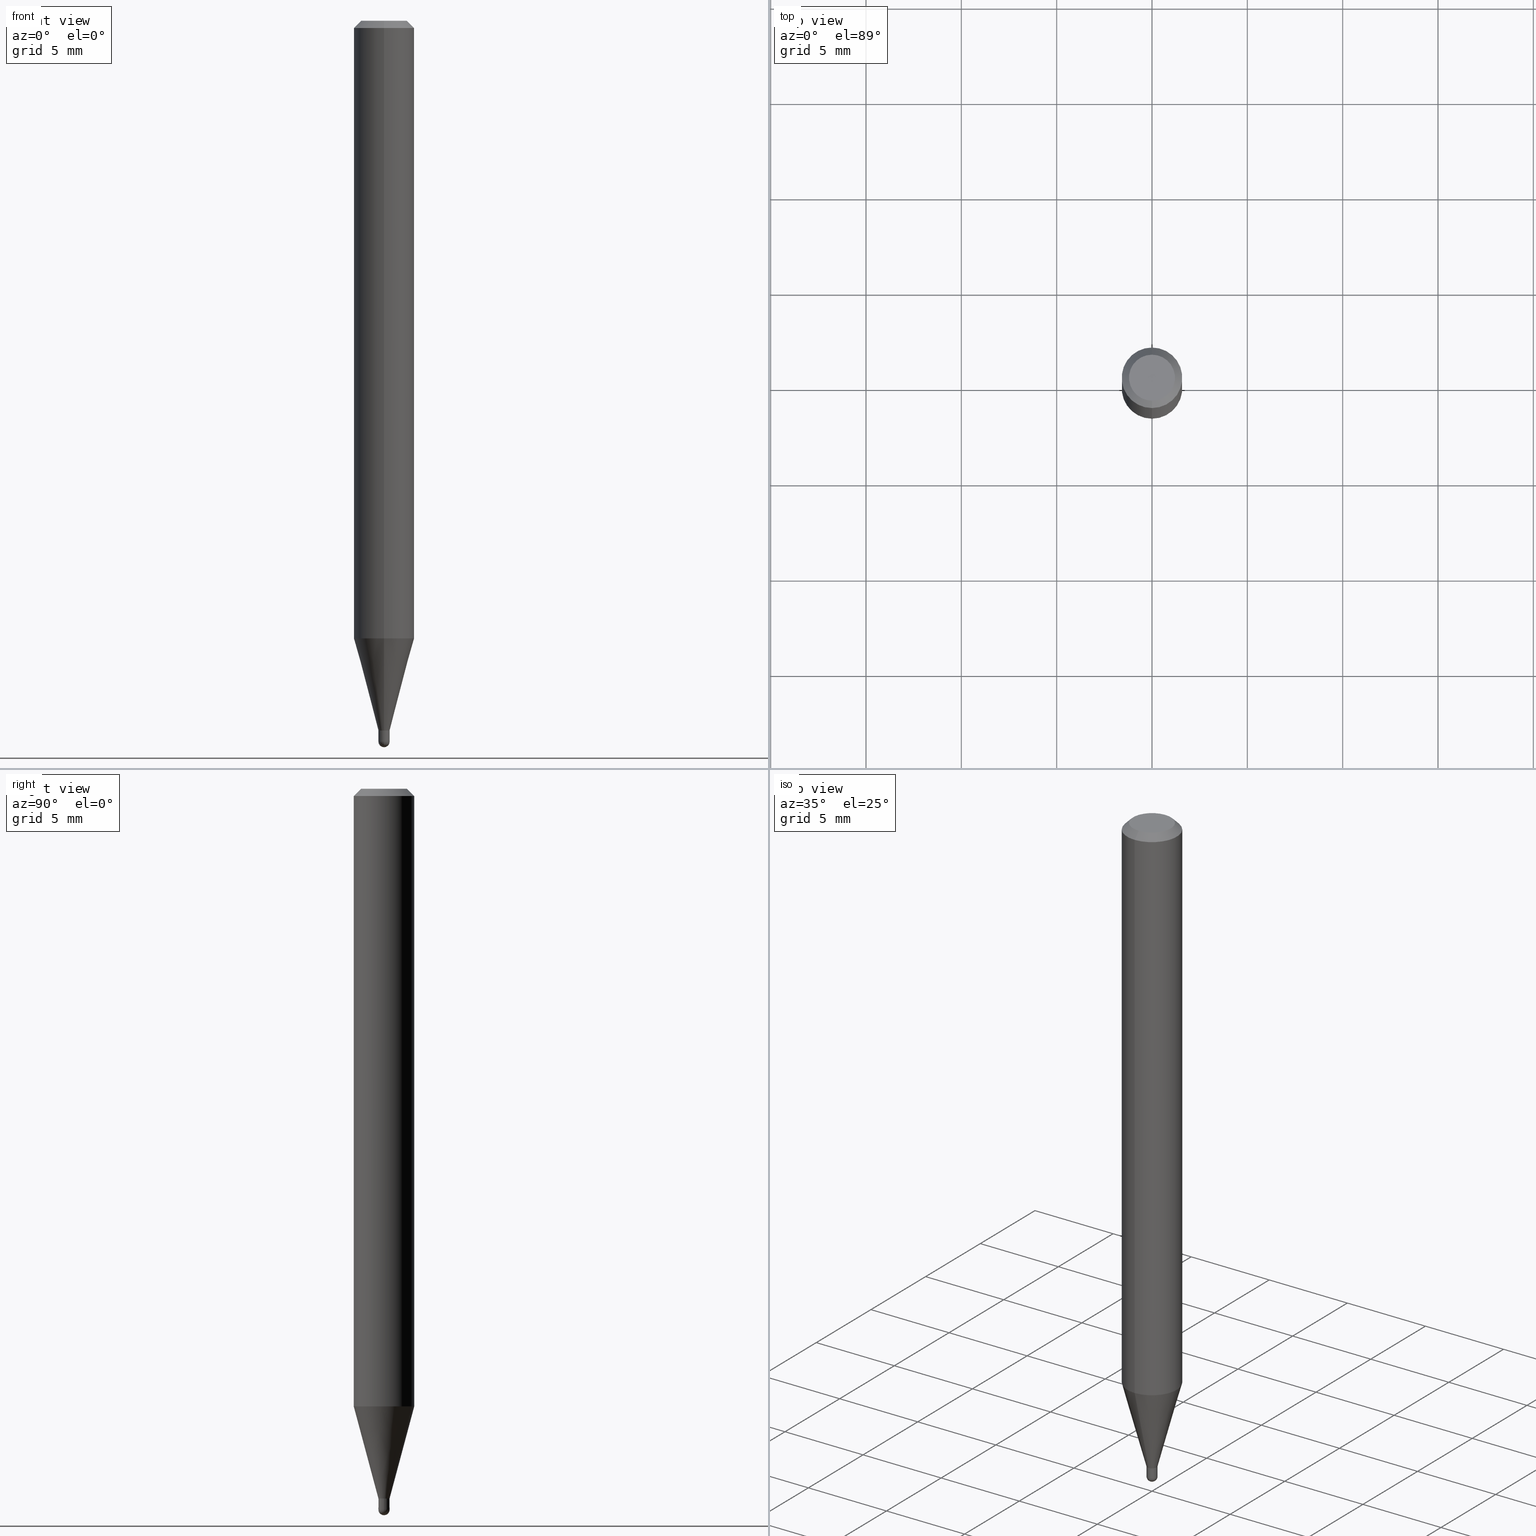
[diagram: canonical four-view strip — front | top / right | iso, engineering-drawing reading convention]
A machine part, canonical four-view strip (front | top / right | iso — engineering-drawing reading convention). The complete STEP part file that produces these views, byte-faithful:
ISO-10303-21;
HEADER;
FILE_DESCRIPTION (( 'STEP AP203' ),
    '1' );
FILE_NAME ('04335.STEP',
    '2024-03-08T18:42:00',
    ( '' ),
    ( '' ),
    'SwSTEP 2.0',
    'SolidWorks 2023',
    '' );
FILE_SCHEMA (( 'CONFIG_CONTROL_DESIGN' ));
ENDSEC;

DATA;
#1 = AXIS2_PLACEMENT_3D ( 'NONE', #470, #182, #310 ) ;
#2 = EDGE_CURVE ( 'NONE', #123, #12, #137, .T. ) ;
#3 = CARTESIAN_POINT ( 'NONE',  ( 3.639096876774019405E-29, -5.198478316687040897E-15, -1.488499999999999934 ) ) ;
#4 = APPROVAL_PERSON_ORGANIZATION ( #27, #221, #142 ) ;
#5 = VERTEX_POINT ( 'NONE', #140 ) ;
#6 = APPROVAL ( #149, 'UNSPECIFIED' ) ;
#7 = FACE_OUTER_BOUND ( 'NONE', #132, .T. ) ;
#8 = ORIENTED_EDGE ( 'NONE', *, *, #428, .F. ) ;
#9 = DIRECTION ( 'NONE',  ( -2.445458199686811068E-29, 3.491496527952432111E-15, 1.000000000000000000 ) ) ;
#10 = ORIENTED_EDGE ( 'NONE', *, *, #298, .T. ) ;
#11 = CARTESIAN_POINT ( 'NONE',  ( 3.583818991641022861E-29, -5.116788161714290594E-15, -1.465500000000000469 ) ) ;
#12 = VERTEX_POINT ( 'NONE', #461 ) ;
#13 = EDGE_CURVE ( 'NONE', #455, #268, #111, .T. ) ;
#14 = DIRECTION ( 'NONE',  ( -2.445468806185136597E-29, 3.491481338843145583E-15, 1.000000000000000000 ) ) ;
#15 = ORIENTED_EDGE ( 'NONE', *, *, #2, .T. ) ;
#16 = CARTESIAN_POINT ( 'NONE',  ( 7.993605777304780207E-17, 0.01099999999999488540, -1.465500000000000469 ) ) ;
#17 = ORIENTED_EDGE ( 'NONE', *, *, #478, .F. ) ;
#18 = DIRECTION ( 'NONE',  ( 6.982962677686265922E-15, 1.000000000000000000, -3.483106191921935554E-15 ) ) ;
#19 = CARTESIAN_POINT ( 'NONE',  ( 0.01149999999999999981, -8.030407079339207309E-17, 5.607603292165326057E-31 ) ) ;
#20 = CARTESIAN_POINT ( 'NONE',  ( 3.640080318006575506E-29, -5.197069972868022017E-15, -1.488499999999999934 ) ) ;
#21 = DESIGN_CONTEXT ( 'detailed design', #181, 'design' ) ;
#22 = CARTESIAN_POINT ( 'NONE',  ( 0.000000000000000000, 0.000000000000000000, 0.000000000000000000 ) ) ;
#23 = CARTESIAN_POINT ( 'NONE',  ( 4.440892098500625669E-16, 0.06250000000000000000, -2.182185329970270069E-16 ) ) ;
#24 = ORIENTED_EDGE ( 'NONE', *, *, #371, .T. ) ;
#25 = CARTESIAN_POINT ( 'NONE',  ( 3.583818991641022861E-29, -5.116788161714290594E-15, -1.465500000000000469 ) ) ;
#26 = EDGE_CURVE ( 'NONE', #5, #265, #224, .T. ) ;
#27 = PERSON_AND_ORGANIZATION ( #254, #176 ) ;
#28 = VECTOR ( 'NONE', #364, 39.37007874015748854 ) ;
#29 = CC_DESIGN_SECURITY_CLASSIFICATION ( #219, ( #238 ) ) ;
#30 = CARTESIAN_POINT ( 'NONE',  ( 3.666728047428870464E-29, -5.239334523993247680E-15, -1.500000000000000222 ) ) ;
#31 = APPROVAL_ROLE ( '' ) ;
#32 = FACE_OUTER_BOUND ( 'NONE', #206, .T. ) ;
#33 = ADVANCED_FACE ( 'NONE', ( #218 ), #387, .T. ) ;
#34 = DIRECTION ( 'NONE',  ( -6.982962677686265922E-15, -1.000000000000000000, 3.491496527952432111E-15 ) ) ;
#35 = VECTOR ( 'NONE', #511, 39.37007874015748143 ) ;
#36 = PERSON_AND_ORGANIZATION ( #254, #176 ) ;
#37 = CIRCLE ( 'NONE', #133, 0.01150000000000019930 ) ;
#38 = DIRECTION ( 'NONE',  ( 1.000000000000000000, -6.982962677686267499E-15, 4.876176775795935793E-29 ) ) ;
#39 = CARTESIAN_POINT ( 'NONE',  ( 3.583818991641022861E-29, -5.116788161714290594E-15, -1.465500000000000469 ) ) ;
#40 = ADVANCED_FACE ( 'NONE', ( #360 ), #67, .F. ) ;
#41 = LINE ( 'NONE', #127, #28 ) ;
#42 = ORIENTED_EDGE ( 'NONE', *, *, #285, .F. ) ;
#43 = CC_DESIGN_PERSON_AND_ORGANIZATION_ASSIGNMENT ( #317, #397, ( #194 ) ) ;
#44 = CARTESIAN_POINT ( 'NONE',  ( 8.171241461244846087E-17, 0.01149999999999504717, -1.465000000000000302 ) ) ;
#45 = EDGE_LOOP ( 'NONE', ( #200, #116 ) ) ;
#46 = DIRECTION ( 'NONE',  ( 2.438088387897960049E-29, -3.491481338843145188E-15, -1.000000000000000000 ) ) ;
#47 = ORIENTED_EDGE ( 'NONE', *, *, #316, .T. ) ;
#48 = CARTESIAN_POINT ( 'NONE',  ( -4.364351673553606080E-16, -0.06250000000000446865, -1.275165408813993873 ) ) ;
#49 = EDGE_CURVE ( 'NONE', #268, #455, #225, .T. ) ;
#50 = ORIENTED_EDGE ( 'NONE', *, *, #49, .T. ) ;
#51 = LENGTH_MEASURE_WITH_UNIT ( LENGTH_MEASURE( 0.02539999999999999897 ), #139 );
#52 = EDGE_LOOP ( 'NONE', ( #42, #24, #458, #166 ) ) ;
#53 = CIRCLE ( 'NONE', #502, 0.06250000000000000000 ) ;
#54 = CARTESIAN_POINT ( 'NONE',  ( 3.316907271900976096E-16, 0.04749999999999999362, -1.985958413625930540E-16 ) ) ;
#55 = ORIENTED_EDGE ( 'NONE', *, *, #329, .F. ) ;
#56 = DIRECTION ( 'NONE',  ( 5.024295867788190974E-15, 0.7071067811865681119, 0.7071067811865270336 ) ) ;
#57 = DIRECTION ( 'NONE',  ( -2.445468806185136877E-29, 3.491481338843145188E-15, 1.000000000000000000 ) ) ;
#58 = DIRECTION ( 'NONE',  ( -2.445458199686811068E-29, 3.491496527952432111E-15, 1.000000000000000000 ) ) ;
#59 = DIRECTION ( 'NONE',  ( -2.445468806185136877E-29, 3.491481338843145188E-15, 1.000000000000000000 ) ) ;
#60 = AXIS2_PLACEMENT_3D ( 'NONE', #154, #46, #246 ) ;
#61 = DIRECTION ( 'NONE',  ( -2.445458199686811068E-29, 3.491496527952432111E-15, 1.000000000000000000 ) ) ;
#62 = ORIENTED_EDGE ( 'NONE', *, *, #185, .T. ) ;
#63 = DATE_AND_TIME ( #429, #339 ) ;
#64 = EDGE_LOOP ( 'NONE', ( #488, #389, #369, #372 ) ) ;
#65 = ADVANCED_FACE ( 'NONE', ( #32 ), #347, .T. ) ;
#66 = CARTESIAN_POINT ( 'NONE',  ( 0.000000000000000000, 0.000000000000000000, 0.000000000000000000 ) ) ;
#67 = PLANE ( 'NONE',  #363 ) ;
#68 = CONICAL_SURFACE ( 'NONE', #122, 0.01100000000000000110, 0.7853981633974739252 ) ;
#69 = AXIS2_PLACEMENT_3D ( 'NONE', #76, #78, #480 ) ;
#70 = DIRECTION ( 'NONE',  ( -4.937700262164674260E-15, -0.7071067811865632269, 0.7071067811865319186 ) ) ;
#71 = ADVANCED_FACE ( 'NONE', ( #230 ), #189, .T. ) ;
#72 = CYLINDRICAL_SURFACE ( 'NONE', #119, 0.01150000000000019930 ) ;
#73 = DIRECTION ( 'NONE',  ( -6.982962677686265922E-15, -1.000000000000000000, 3.491496527952432111E-15 ) ) ;
#74 = LINE ( 'NONE', #396, #183 ) ;
#75 = LINE ( 'NONE', #326, #367 ) ;
#76 = CARTESIAN_POINT ( 'NONE',  ( 3.582596262541178850E-29, -5.115042413450313463E-15, -1.465000000000000302 ) ) ;
#77 = VERTEX_POINT ( 'NONE', #503 ) ;
#78 = DIRECTION ( 'NONE',  ( -2.445458199686811068E-29, 3.491496527952432111E-15, 1.000000000000000000 ) ) ;
#79 = VECTOR ( 'NONE', #167, 39.37007874015748143 ) ;
#80 = ORIENTED_EDGE ( 'NONE', *, *, #489, .F. ) ;
#81 = ADVANCED_FACE ( 'NONE', ( #436 ), #506, .T. ) ;
#82 = DIRECTION ( 'NONE',  ( -6.982962677686265922E-15, -1.000000000000000000, 0.000000000000000000 ) ) ;
#83 = VERTEX_POINT ( 'NONE', #30 ) ;
#84 = CIRCLE ( 'NONE', #162, 0.01149999999999999981 ) ;
#85 = DIRECTION ( 'NONE',  ( 1.000000000000000000, -6.982962677686291165E-15, 0.000000000000000000 ) ) ;
#86 = ORIENTED_EDGE ( 'NONE', *, *, #421, .T. ) ;
#87 = DIRECTION ( 'NONE',  ( 1.000000000000000000, -6.982962677686291165E-15, 0.000000000000000000 ) ) ;
#88 = EDGE_LOOP ( 'NONE', ( #481, #365, #485, #159 ) ) ;
#89 = EDGE_CURVE ( 'NONE', #135, #500, #465, .T. ) ;
#90 = AXIS2_PLACEMENT_3D ( 'NONE', #287, #484, #165 ) ;
#91 = CARTESIAN_POINT ( 'NONE',  ( 3.583818991641021740E-29, -5.116788161714288228E-15, -1.465500000000000025 ) ) ;
#92 = ORIENTED_EDGE ( 'NONE', *, *, #482, .T. ) ;
#93 = PRODUCT_RELATED_PRODUCT_CATEGORY ( 'detail', '', ( #194 ) ) ;
#94 = CARTESIAN_POINT ( 'NONE',  ( -3.773273898774340269E-16, -0.04749999999999999362, 1.003465725080354180E-16 ) ) ;
#95 = ORIENTED_EDGE ( 'NONE', *, *, #49, .F. ) ;
#96 = DIRECTION ( 'NONE',  ( 1.000000000000000000, -6.982962677686267499E-15, 4.876176775795935793E-29 ) ) ;
#97 = ORIENTED_EDGE ( 'NONE', *, *, #147, .F. ) ;
#98 = CIRCLE ( 'NONE', #445, 0.01149999999999999981 ) ;
#99 = EDGE_CURVE ( 'NONE', #83, #77, #241, .T. ) ;
#100 = ORIENTED_EDGE ( 'NONE', *, *, #349, .T. ) ;
#101 = DIRECTION ( 'NONE',  ( 1.000000000000000000, 0.000000000000000000, 0.000000000000000000 ) ) ;
#102 = DIRECTION ( 'NONE',  ( -6.982962677686265922E-15, -1.000000000000000000, 0.000000000000000000 ) ) ;
#103 = SECURITY_CLASSIFICATION_LEVEL ( 'unclassified' ) ;
#104 = CARTESIAN_POINT ( 'NONE',  ( -8.030407079339345359E-17, -0.01150000000000019930, 4.015221007145366431E-17 ) ) ;
#105 = AXIS2_PLACEMENT_3D ( 'NONE', #330, #447, #304 ) ;
#106 = CALENDAR_DATE ( 2024, 8, 3 ) ;
#107 = DIRECTION ( 'NONE',  ( -2.445458199686811068E-29, 3.491496527952432111E-15, 1.000000000000000000 ) ) ;
#108 = COORDINATED_UNIVERSAL_TIME_OFFSET ( 5, 0, .BEHIND. ) ;
#109 = CARTESIAN_POINT ( 'NONE',  ( -0.01149999999999999981, -5.075205522858914658E-15, -1.488499999999999934 ) ) ;
#110 = DIRECTION ( 'NONE',  ( -6.982962677686265922E-15, -1.000000000000000000, 0.000000000000000000 ) ) ;
#111 = CIRCLE ( 'NONE', #145, 0.06250000000000000000 ) ;
#112 = CIRCLE ( 'NONE', #266, 0.01150000000000019930 ) ;
#113 = EDGE_CURVE ( 'NONE', #77, #5, #442, .T. ) ;
#114 = CARTESIAN_POINT ( 'NONE',  ( 3.668187299530233313E-31, -5.237244791928671192E-17, -0.01500000000000006710 ) ) ;
#115 = CYLINDRICAL_SURFACE ( 'NONE', #90, 0.01150000000000019930 ) ;
#116 = ORIENTED_EDGE ( 'NONE', *, *, #285, .T. ) ;
#117 = FACE_OUTER_BOUND ( 'NONE', #410, .T. ) ;
#118 = VERTEX_POINT ( 'NONE', #472 ) ;
#119 = AXIS2_PLACEMENT_3D ( 'NONE', #143, #312, #34 ) ;
#120 = ADVANCED_FACE ( 'NONE', ( #433 ), #191, .T. ) ;
#121 = DIRECTION ( 'NONE',  ( -2.445458199686811068E-29, 3.491496527952432111E-15, 1.000000000000000000 ) ) ;
#122 = AXIS2_PLACEMENT_3D ( 'NONE', #39, #9, #296 ) ;
#123 = VERTEX_POINT ( 'NONE', #109 ) ;
#124 = LOCAL_TIME ( 13, 42, 0.000000000000000000, #223 ) ;
#125 = DIMENSIONAL_EXPONENTS ( 1.000000000000000000, 0.000000000000000000, 0.000000000000000000, 0.000000000000000000, 0.000000000000000000, 0.000000000000000000, 0.000000000000000000 ) ;
#126 = APPLICATION_CONTEXT ( 'configuration controlled 3d designs of mechanical parts and assemblies' ) ;
#127 = CARTESIAN_POINT ( 'NONE',  ( 8.171241461244875669E-17, 0.01149999999999508360, -1.465500000000000025 ) ) ;
#128 = EDGE_LOOP ( 'NONE', ( #204, #342, #262, #406 ) ) ;
#129 = DIRECTION ( 'NONE',  ( 6.982962677686265922E-15, 1.000000000000000000, -3.491496527952432506E-15 ) ) ;
#130 = ORIENTED_EDGE ( 'NONE', *, *, #13, .F. ) ;
#131 = ADVANCED_FACE ( 'NONE', ( #464 ), #72, .F. ) ;
#132 = EDGE_LOOP ( 'NONE', ( #259, #10, #178, #180 ) ) ;
#133 = AXIS2_PLACEMENT_3D ( 'NONE', #91, #61, #217 ) ;
#134 = DIRECTION ( 'NONE',  ( -2.445468806185136597E-29, 3.491481338843145583E-15, 1.000000000000000000 ) ) ;
#135 = VERTEX_POINT ( 'NONE', #278 ) ;
#136 = DIRECTION ( 'NONE',  ( -6.982962677686265922E-15, -1.000000000000000000, 0.000000000000000000 ) ) ;
#137 = LINE ( 'NONE', #222, #345 ) ;
#138 = EDGE_CURVE ( 'NONE', #413, #409, #233, .T. ) ;
#139 =( LENGTH_UNIT ( ) NAMED_UNIT ( * ) SI_UNIT ( $, .METRE. ) );
#140 = CARTESIAN_POINT ( 'NONE',  ( 0.01149999999999999981, -5.237222008264718177E-15, -1.488499999999999934 ) ) ;
#141 = CONICAL_SURFACE ( 'NONE', #315, 0.06250000000000000000, 0.7853981633974483900 ) ;
#142 = APPROVAL_ROLE ( '' ) ;
#143 = CARTESIAN_POINT ( 'NONE',  ( 0.000000000000000000, 0.000000000000000000, 0.000000000000000000 ) ) ;
#144 =( NAMED_UNIT ( * ) SI_UNIT ( $, .STERADIAN. ) SOLID_ANGLE_UNIT ( ) );
#145 = AXIS2_PLACEMENT_3D ( 'NONE', #418, #425, #215 ) ;
#146 = CARTESIAN_POINT ( 'NONE',  ( 0.000000000000000000, 0.000000000000000000, 0.000000000000000000 ) ) ;
#147 = EDGE_CURVE ( 'NONE', #331, #450, #383, .T. ) ;
#148 = CIRCLE ( 'NONE', #273, 0.01149999999999999981 ) ;
#149 = APPROVAL_STATUS ( 'not_yet_approved' ) ;
#150 = DIRECTION ( 'NONE',  ( 1.000000000000000000, -6.982962677686265922E-15, 4.883557194083112901E-29 ) ) ;
#151 = APPROVAL_ROLE ( '' ) ;
#152 = CARTESIAN_POINT ( 'NONE',  ( 1.601763200890746916E-45, -2.286913207197020571E-31, -6.549951256970509890E-17 ) ) ;
#153 = EDGE_CURVE ( 'NONE', #413, #268, #281, .T. ) ;
#154 = CARTESIAN_POINT ( 'NONE',  ( 8.030407079342789230E-17, 0.01149999999999488411, -1.465500000000000247 ) ) ;
#155 = CC_DESIGN_DATE_AND_TIME_ASSIGNMENT ( #507, #226, ( #263 ) ) ;
#156 = CIRCLE ( 'NONE', #420, 0.01150000000000019930 ) ;
#157 = CONICAL_SURFACE ( 'NONE', #105, 0.06250000000000000000, 0.7853981633974483900 ) ;
#158 = DIRECTION ( 'NONE',  ( 1.000000000000000000, -7.105427357601001070E-15, 4.926315508542082329E-29 ) ) ;
#159 = ORIENTED_EDGE ( 'NONE', *, *, #138, .F. ) ;
#160 = DIRECTION ( 'NONE',  ( -6.982962677686265922E-15, -1.000000000000000000, 3.491496527952432111E-15 ) ) ;
#161 = ORIENTED_EDGE ( 'NONE', *, *, #2, .F. ) ;
#162 = AXIS2_PLACEMENT_3D ( 'NONE', #203, #368, #240 ) ;
#163 = CARTESIAN_POINT ( 'NONE',  ( 3.840629472727447874E-16, 0.04749999999999999362, -2.313455976474456035E-16 ) ) ;
#164 = ORIENTED_EDGE ( 'NONE', *, *, #482, .F. ) ;
#165 = DIRECTION ( 'NONE',  ( -6.982962677686265922E-15, -1.000000000000000000, 3.491496527952432111E-15 ) ) ;
#166 = ORIENTED_EDGE ( 'NONE', *, *, #202, .F. ) ;
#167 = DIRECTION ( 'NONE',  ( -2.445458199686811349E-29, 3.491496527952432506E-15, 1.000000000000000000 ) ) ;
#168 = ORIENTED_EDGE ( 'NONE', *, *, #496, .F. ) ;
#169 = CIRCLE ( 'NONE', #69, 0.01150000000000019930 ) ;
#170 = EDGE_CURVE ( 'NONE', #135, #409, #74, .T. ) ;
#171 = LINE ( 'NONE', #23, #451 ) ;
#172 = ORIENTED_EDGE ( 'NONE', *, *, #252, .T. ) ;
#173 = AXIS2_PLACEMENT_3D ( 'NONE', #392, #270, #102 ) ;
#174 = DIRECTION ( 'NONE',  ( -2.445468806185136597E-29, 3.491481338843145583E-15, 1.000000000000000000 ) ) ;
#175 = ORIENTED_EDGE ( 'NONE', *, *, #153, .T. ) ;
#176 = ORGANIZATION ( 'UNSPECIFIED', 'UNSPECIFIED', '' ) ;
#177 = DIRECTION ( 'NONE',  ( -4.851104656540964275E-15, -0.7071067811865500152, -0.7071067811865450192 ) ) ;
#178 = ORIENTED_EDGE ( 'NONE', *, *, #170, .T. ) ;
#179 = AXIS2_PLACEMENT_3D ( 'NONE', #11, #242, #487 ) ;
#180 = ORIENTED_EDGE ( 'NONE', *, *, #380, .F. ) ;
#181 = APPLICATION_CONTEXT ( 'configuration controlled 3d designs of mechanical parts and assemblies' ) ;
#182 = DIRECTION ( 'NONE',  ( -2.445458199686811068E-29, 3.491496527952432111E-15, 1.000000000000000000 ) ) ;
#183 = VECTOR ( 'NONE', #70, 39.37007874015748143 ) ;
#184 = AXIS2_PLACEMENT_3D ( 'NONE', #454, #174, #96 ) ;
#185 = EDGE_CURVE ( 'NONE', #265, #12, #283, .T. ) ;
#186 = MECHANICAL_CONTEXT ( 'NONE', #126, 'mechanical' ) ;
#187 = DIRECTION ( 'NONE',  ( -1.000000000000000000, 6.982962677686265922E-15, -4.883557194083112340E-29 ) ) ;
#188 = CC_DESIGN_PERSON_AND_ORGANIZATION_ASSIGNMENT ( #391, #352, ( #238 ) ) ;
#189 = SPHERICAL_SURFACE ( 'NONE', #173, 0.01150000000000006919 ) ;
#190 = COORDINATED_UNIVERSAL_TIME_OFFSET ( 5, 0, .BEHIND. ) ;
#191 = CONICAL_SURFACE ( 'NONE', #483, 0.01150000000000019930, 0.2617993877991576235 ) ;
#192 = DIRECTION ( 'NONE',  ( -2.445468806185136597E-29, 3.491481338843145583E-15, 1.000000000000000000 ) ) ;
#193 = AXIS2_PLACEMENT_3D ( 'NONE', #114, #199, #284 ) ;
#194 = PRODUCT ( '04335', '04335', '', ( #186 ) ) ;
#195 = APPLICATION_PROTOCOL_DEFINITION ( 'international standard', 'config_control_design', 1994, #126 ) ;
#196 = CARTESIAN_POINT ( 'NONE',  ( 3.639096876774019405E-29, -5.198478316687040897E-15, -1.488499999999999934 ) ) ;
#197 = CARTESIAN_POINT ( 'NONE',  ( 3.583818991641021740E-29, -5.116788161714288228E-15, -1.465500000000000025 ) ) ;
#198 = CC_DESIGN_DATE_AND_TIME_ASSIGNMENT ( #346, #459, ( #219 ) ) ;
#199 = DIRECTION ( 'NONE',  ( -2.445458199686811068E-29, 3.491496527952432111E-15, 1.000000000000000000 ) ) ;
#200 = ORIENTED_EDGE ( 'NONE', *, *, #147, .T. ) ;
#201 = CIRCLE ( 'NONE', #193, 0.06250000000000000000 ) ;
#202 = EDGE_CURVE ( 'NONE', #331, #118, #75, .T. ) ;
#203 = CARTESIAN_POINT ( 'NONE',  ( 3.640080318006575506E-29, -5.197069972868022017E-15, -1.488499999999999934 ) ) ;
#204 = ORIENTED_EDGE ( 'NONE', *, *, #89, .T. ) ;
#205 = CARTESIAN_POINT ( 'NONE',  ( -4.364351673553912750E-16, -0.06250000000000005551, -0.01499999999999984852 ) ) ;
#206 = EDGE_LOOP ( 'NONE', ( #50, #247, #17, #80 ) ) ;
#207 = CARTESIAN_POINT ( 'NONE',  ( 3.583818991641021740E-29, -5.116788161714288228E-15, -1.465500000000000025 ) ) ;
#208 = VERTEX_POINT ( 'NONE', #44 ) ;
#209 =( CONVERSION_BASED_UNIT ( 'INCH', #51 ) LENGTH_UNIT ( ) NAMED_UNIT ( #125 ) );
#210 = LOCAL_TIME ( 13, 42, 0.000000000000000000, #350 ) ;
#211 = ADVANCED_FACE ( 'NONE', ( #370 ), #319, .T. ) ;
#212 = DIRECTION ( 'NONE',  ( -2.445458199686811068E-29, 3.491496527952432111E-15, 1.000000000000000000 ) ) ;
#213 = ORIENTED_EDGE ( 'NONE', *, *, #371, .F. ) ;
#214 = FACE_OUTER_BOUND ( 'NONE', #401, .T. ) ;
#215 = DIRECTION ( 'NONE',  ( -6.982962677686265922E-15, -1.000000000000000000, 4.370956789862821150E-15 ) ) ;
#216 = AXIS2_PLACEMENT_3D ( 'NONE', #146, #107, #73 ) ;
#217 = DIRECTION ( 'NONE',  ( -6.982962677686265922E-15, -1.000000000000000000, 0.000000000000000000 ) ) ;
#218 = FACE_OUTER_BOUND ( 'NONE', #382, .T. ) ;
#219 = SECURITY_CLASSIFICATION ( '', '', #103 ) ;
#220 = LINE ( 'NONE', #306, #79 ) ;
#221 = APPROVAL ( #432, 'UNSPECIFIED' ) ;
#222 = CARTESIAN_POINT ( 'NONE',  ( -0.01149999999999999981, 8.171241461241151999E-17, -5.656775353793142476E-31 ) ) ;
#223 = COORDINATED_UNIVERSAL_TIME_OFFSET ( 5, 0, .BEHIND. ) ;
#224 = LINE ( 'NONE', #19, #448 ) ;
#225 = CIRCLE ( 'NONE', #1, 0.06250000000000000000 ) ;
#226 = DATE_TIME_ROLE ( 'creation_date' ) ;
#227 = DIRECTION ( 'NONE',  ( -6.982962677686265922E-15, -1.000000000000000000, 3.491496527952432506E-15 ) ) ;
#228 = LOCAL_TIME ( 13, 42, 0.000000000000000000, #190 ) ;
#229 = CC_DESIGN_APPROVAL ( #221, ( #219 ) ) ;
#230 = FACE_OUTER_BOUND ( 'NONE', #444, .T. ) ;
#231 = AXIS2_PLACEMENT_3D ( 'NONE', #197, #512, #321 ) ;
#232 = APPROVAL_DATE_TIME ( #311, #221 ) ;
#233 = LINE ( 'NONE', #104, #35 ) ;
#234 = MANIFOLD_SOLID_BREP ( 'Body-Move/Copy2[1]', #437 ) ;
#235 = PERSON_AND_ORGANIZATION_ROLE ( 'creator' ) ;
#236 = AXIS2_PLACEMENT_3D ( 'NONE', #398, #187, #275 ) ;
#237 = CARTESIAN_POINT ( 'NONE',  ( 3.583818991641022861E-29, -5.116788161714290594E-15, -1.465500000000000469 ) ) ;
#238 = PRODUCT_DEFINITION_FORMATION_WITH_SPECIFIED_SOURCE ( 'ANY', '', #194, .NOT_KNOWN. ) ;
#239 = CARTESIAN_POINT ( 'NONE',  ( 0.01149999999999999981, -5.197069972868022806E-15, -1.465500000000000247 ) ) ;
#240 = DIRECTION ( 'NONE',  ( 1.000000000000000000, -6.982962677686291165E-15, 0.000000000000000000 ) ) ;
#241 = CIRCLE ( 'NONE', #236, 0.01150000000000006919 ) ;
#242 = DIRECTION ( 'NONE',  ( -2.445458199686811068E-29, 3.491496527952432111E-15, 1.000000000000000000 ) ) ;
#243 = EDGE_LOOP ( 'NONE', ( #307, #498, #164, #168 ) ) ;
#244 = ADVANCED_FACE ( 'NONE', ( #7 ), #434, .T. ) ;
#245 = AXIS2_PLACEMENT_3D ( 'NONE', #3, #158, #477 ) ;
#246 = DIRECTION ( 'NONE',  ( -1.000000000000000000, 6.982962677686265922E-15, -4.876176775795935793E-29 ) ) ;
#247 = ORIENTED_EDGE ( 'NONE', *, *, #504, .T. ) ;
#248 = AXIS2_PLACEMENT_3D ( 'NONE', #395, #192, #361 ) ;
#249 = FACE_OUTER_BOUND ( 'NONE', #128, .T. ) ;
#250 = VERTEX_POINT ( 'NONE', #440 ) ;
#251 = CARTESIAN_POINT ( 'NONE',  ( 3.640080318006575506E-29, -5.197069972868022017E-15, -1.488499999999999934 ) ) ;
#252 = EDGE_CURVE ( 'NONE', #5, #453, #84, .T. ) ;
#253 = DIRECTION ( 'NONE',  ( -2.445458199686811349E-29, 3.491496527952432506E-15, 1.000000000000000000 ) ) ;
#254 = PERSON ( 'UNSPECIFIED', 'UNSPECIFIED', 'UNSPECIFIED', ('UNSPECIFIED'), ('UNSPECIFIED'), ('UNSPECIFIED') ) ;
#255 = AXIS2_PLACEMENT_3D ( 'NONE', #20, #343, #85 ) ;
#256 = ORIENTED_EDGE ( 'NONE', *, *, #26, .F. ) ;
#257 = APPROVAL ( #313, 'UNSPECIFIED' ) ;
#258 = CARTESIAN_POINT ( 'NONE',  ( 3.582596262541178850E-29, -5.115042413450313463E-15, -1.465000000000000302 ) ) ;
#259 = ORIENTED_EDGE ( 'NONE', *, *, #414, .F. ) ;
#260 = EDGE_CURVE ( 'NONE', #409, #208, #169, .T. ) ;
#261 = CARTESIAN_POINT ( 'NONE',  ( 8.171241461244814040E-17, 0.01149999999999483553, -1.488499999999999934 ) ) ;
#262 = ORIENTED_EDGE ( 'NONE', *, *, #260, .F. ) ;
#263 = PRODUCT_DEFINITION ( 'UNKNOWN', '', #238, #21 ) ;
#264 = DIRECTION ( 'NONE',  ( 1.000000000000000000, -6.982962677686291165E-15, 0.000000000000000000 ) ) ;
#265 = VERTEX_POINT ( 'NONE', #239 ) ;
#266 = AXIS2_PLACEMENT_3D ( 'NONE', #258, #58, #136 ) ;
#267 = CALENDAR_DATE ( 2024, 8, 3 ) ;
#268 = VERTEX_POINT ( 'NONE', #48 ) ;
#269 = PERSON_AND_ORGANIZATION ( #254, #176 ) ;
#270 = DIRECTION ( 'NONE',  ( 1.000000000000000000, -6.982962677686265922E-15, 4.883557194083112901E-29 ) ) ;
#271 = SHAPE_DEFINITION_REPRESENTATION ( #290, #403 ) ;
#272 = DIRECTION ( 'NONE',  ( -6.982962677686266711E-15, -1.000000000000000000, 3.491496527952432111E-15 ) ) ;
#273 = AXIS2_PLACEMENT_3D ( 'NONE', #494, #134, #87 ) ;
#274 = PERSON_AND_ORGANIZATION_ROLE ( 'classification_officer' ) ;
#275 = DIRECTION ( 'NONE',  ( -6.982962677686265922E-15, -1.000000000000000000, 0.000000000000000000 ) ) ;
#276 = ADVANCED_FACE ( 'NONE', ( #117 ), #446, .T. ) ;
#277 = DATE_AND_TIME ( #355, #460 ) ;
#278 = CARTESIAN_POINT ( 'NONE',  ( -7.681258945451309882E-17, -0.01100000000000511680, -1.465500000000000469 ) ) ;
#279 = ADVANCED_FACE ( 'NONE', ( #324 ), #408, .F. ) ;
#280 = UNCERTAINTY_MEASURE_WITH_UNIT (LENGTH_MEASURE( 1.000000000000000082E-05 ), #209, 'distance_accuracy_value', 'NONE');
#281 = LINE ( 'NONE', #431, #357 ) ;
#282 = CIRCLE ( 'NONE', #358, 0.04749999999999999362 ) ;
#283 = CIRCLE ( 'NONE', #248, 0.01149999999999999981 ) ;
#284 = DIRECTION ( 'NONE',  ( -6.982962677686265922E-15, -1.000000000000000000, 3.483106191921935554E-15 ) ) ;
#285 = EDGE_CURVE ( 'NONE', #450, #331, #282, .T. ) ;
#286 = ORIENTED_EDGE ( 'NONE', *, *, #99, .F. ) ;
#287 = CARTESIAN_POINT ( 'NONE',  ( 0.000000000000000000, 0.000000000000000000, 0.000000000000000000 ) ) ;
#288 = ORIENTED_EDGE ( 'NONE', *, *, #13, .T. ) ;
#289 = CC_DESIGN_PERSON_AND_ORGANIZATION_ASSIGNMENT ( #36, #501, ( #263 ) ) ;
#290 = PRODUCT_DEFINITION_SHAPE ( 'NONE', 'NONE',  #263 ) ;
#291 = AXIS2_PLACEMENT_3D ( 'NONE', #356, #463, #509 ) ;
#292 = CARTESIAN_POINT ( 'NONE',  ( 0.000000000000000000, 0.000000000000000000, 0.000000000000000000 ) ) ;
#293 = ORIENTED_EDGE ( 'NONE', *, *, #496, .T. ) ;
#294 = AXIS2_PLACEMENT_3D ( 'NONE', #292, #443, #160 ) ;
#295 = FACE_OUTER_BOUND ( 'NONE', #52, .T. ) ;
#296 = DIRECTION ( 'NONE',  ( -6.982962677686265922E-15, -1.000000000000000000, 0.000000000000000000 ) ) ;
#297 = VERTEX_POINT ( 'NONE', #205 ) ;
#298 = EDGE_CURVE ( 'NONE', #500, #135, #302, .T. ) ;
#299 = CARTESIAN_POINT ( 'NONE',  ( -8.030407079335789322E-17, -0.01150000000000535143, -1.465000000000000302 ) ) ;
#300 = ORIENTED_EDGE ( 'NONE', *, *, #504, .F. ) ;
#301 =( NAMED_UNIT ( * ) PLANE_ANGLE_UNIT ( ) SI_UNIT ( $, .RADIAN. ) );
#302 = CIRCLE ( 'NONE', #508, 0.01100000000000000110 ) ;
#303 = ORIENTED_EDGE ( 'NONE', *, *, #185, .F. ) ;
#304 = DIRECTION ( 'NONE',  ( 6.982962677686265922E-15, 1.000000000000000000, -3.483106191921935554E-15 ) ) ;
#305 = ORIENTED_EDGE ( 'NONE', *, *, #89, .F. ) ;
#306 = CARTESIAN_POINT ( 'NONE',  ( 8.171241461241291283E-17, 0.01150000000000019930, -4.015221007145366431E-17 ) ) ;
#307 = ORIENTED_EDGE ( 'NONE', *, *, #349, .F. ) ;
#308 = EDGE_LOOP ( 'NONE', ( #62, #476 ) ) ;
#309 = APPROVAL_PERSON_ORGANIZATION ( #435, #257, #31 ) ;
#310 = DIRECTION ( 'NONE',  ( -6.982962677686265922E-15, -1.000000000000000000, 4.370956789862821150E-15 ) ) ;
#311 = DATE_AND_TIME ( #267, #124 ) ;
#312 = DIRECTION ( 'NONE',  ( -2.445458199686811068E-29, 3.491496527952432111E-15, 1.000000000000000000 ) ) ;
#313 = APPROVAL_STATUS ( 'not_yet_approved' ) ;
#314 = DIRECTION ( 'NONE',  ( -6.982962677686265922E-15, -1.000000000000000000, 0.000000000000000000 ) ) ;
#315 = AXIS2_PLACEMENT_3D ( 'NONE', #456, #333, #18 ) ;
#316 = EDGE_CURVE ( 'NONE', #250, #413, #156, .T. ) ;
#317 = PERSON_AND_ORGANIZATION ( #254, #176 ) ;
#318 = DIRECTION ( 'NONE',  ( -6.982962677686265922E-15, -1.000000000000000000, 0.000000000000000000 ) ) ;
#319 = CONICAL_SURFACE ( 'NONE', #231, 0.01150000000000019930, 0.2617993877991576235 ) ;
#320 = DIRECTION ( 'NONE',  ( -2.445458199686811068E-29, 3.491496527952432111E-15, 1.000000000000000000 ) ) ;
#321 = DIRECTION ( 'NONE',  ( -6.982962677686265922E-15, -1.000000000000000000, 0.000000000000000000 ) ) ;
#322 = ORIENTED_EDGE ( 'NONE', *, *, #336, .F. ) ;
#323 = ADVANCED_FACE ( 'NONE', ( #249 ), #68, .T. ) ;
#324 = FACE_OUTER_BOUND ( 'NONE', #308, .T. ) ;
#325 = ORIENTED_EDGE ( 'NONE', *, *, #329, .T. ) ;
#326 = CARTESIAN_POINT ( 'NONE',  ( 4.364351673553919652E-16, 0.06249999999999995143, -0.01500000000000028394 ) ) ;
#327 = AXIS2_PLACEMENT_3D ( 'NONE', #237, #427, #314 ) ;
#328 = FACE_OUTER_BOUND ( 'NONE', #64, .T. ) ;
#329 = EDGE_CURVE ( 'NONE', #250, #455, #41, .T. ) ;
#330 = CARTESIAN_POINT ( 'NONE',  ( 3.668187299530233313E-31, -5.237244791928671192E-17, -0.01500000000000006710 ) ) ;
#331 = VERTEX_POINT ( 'NONE', #163 ) ;
#332 = CC_DESIGN_PERSON_AND_ORGANIZATION_ASSIGNMENT ( #359, #274, ( #219 ) ) ;
#333 = DIRECTION ( 'NONE',  ( 2.445458199686811068E-29, -3.491496527952432111E-15, -1.000000000000000000 ) ) ;
#334 = ORIENTED_EDGE ( 'NONE', *, *, #26, .T. ) ;
#335 = DIRECTION ( 'NONE',  ( -2.445458199686811349E-29, 3.491496527952432506E-15, 1.000000000000000000 ) ) ;
#336 = EDGE_CURVE ( 'NONE', #118, #297, #201, .T. ) ;
#337 = ORIENTED_EDGE ( 'NONE', *, *, #252, .F. ) ;
#338 = CARTESIAN_POINT ( 'NONE',  ( -8.030407079335760973E-17, -0.01150000000000531500, -1.465500000000000025 ) ) ;
#339 = LOCAL_TIME ( 13, 42, 0.000000000000000000, #426 ) ;
#340 = EDGE_LOOP ( 'NONE', ( #55, #47, #175, #130 ) ) ;
#341 = LINE ( 'NONE', #497, #348 ) ;
#342 = ORIENTED_EDGE ( 'NONE', *, *, #414, .T. ) ;
#343 = DIRECTION ( 'NONE',  ( -2.445468806185136597E-29, 3.491481338843145583E-15, 1.000000000000000000 ) ) ;
#344 = EDGE_LOOP ( 'NONE', ( #305, #491 ) ) ;
#345 = VECTOR ( 'NONE', #57, 39.37007874015748143 ) ;
#346 = DATE_AND_TIME ( #106, #210 ) ;
#347 = CYLINDRICAL_SURFACE ( 'NONE', #216, 0.06250000000000000000 ) ;
#348 = VECTOR ( 'NONE', #253, 39.37007874015748143 ) ;
#349 = EDGE_CURVE ( 'NONE', #83, #453, #486, .T. ) ;
#350 = COORDINATED_UNIVERSAL_TIME_OFFSET ( 5, 0, .BEHIND. ) ;
#351 = CARTESIAN_POINT ( 'NONE',  ( 3.583818991641021740E-29, -5.116788161714288228E-15, -1.465500000000000025 ) ) ;
#352 = PERSON_AND_ORGANIZATION_ROLE ( 'design_supplier' ) ;
#353 = ADVANCED_FACE ( 'NONE', ( #328 ), #115, .F. ) ;
#354 = AXIS2_PLACEMENT_3D ( 'NONE', #22, #390, #38 ) ;
#355 = CALENDAR_DATE ( 2024, 8, 3 ) ;
#356 = CARTESIAN_POINT ( 'NONE',  ( 3.640080318006575506E-29, -5.197069972868022017E-15, -1.488499999999999934 ) ) ;
#357 = VECTOR ( 'NONE', #438, 39.37007874015748143 ) ;
#358 = AXIS2_PLACEMENT_3D ( 'NONE', #405, #441, #399 ) ;
#359 = PERSON_AND_ORGANIZATION ( #254, #176 ) ;
#360 = FACE_OUTER_BOUND ( 'NONE', #344, .T. ) ;
#361 = DIRECTION ( 'NONE',  ( 1.000000000000000000, -6.982962677686291165E-15, 0.000000000000000000 ) ) ;
#362 = ADVANCED_FACE ( 'NONE', ( #295 ), #157, .T. ) ;
#363 = AXIS2_PLACEMENT_3D ( 'NONE', #25, #473, #227 ) ;
#364 = DIRECTION ( 'NONE',  ( 1.839019923739650408E-15, 0.2588190451025320082, 0.9659258262890650926 ) ) ;
#365 = ORIENTED_EDGE ( 'NONE', *, *, #474, .T. ) ;
#366 = VECTOR ( 'NONE', #56, 39.37007874015748143 ) ;
#367 = VECTOR ( 'NONE', #402, 39.37007874015748143 ) ;
#368 = DIRECTION ( 'NONE',  ( -2.445468806185136597E-29, 3.491481338843145583E-15, 1.000000000000000000 ) ) ;
#369 = ORIENTED_EDGE ( 'NONE', *, *, #138, .T. ) ;
#370 = FACE_OUTER_BOUND ( 'NONE', #340, .T. ) ;
#371 = EDGE_CURVE ( 'NONE', #450, #297, #415, .T. ) ;
#372 = ORIENTED_EDGE ( 'NONE', *, *, #260, .T. ) ;
#373 = DIRECTION ( 'NONE',  ( -2.445458199686811068E-29, 3.491496527952432111E-15, 1.000000000000000000 ) ) ;
#374 = ORIENTED_EDGE ( 'NONE', *, *, #113, .F. ) ;
#375 = AXIS2_PLACEMENT_3D ( 'NONE', #66, #394, #101 ) ;
#376 = CARTESIAN_POINT ( 'NONE',  ( 3.668187299530233313E-31, -5.237244791928671192E-17, -0.01500000000000006710 ) ) ;
#377 = EDGE_LOOP ( 'NONE', ( #213, #97, #416, #422 ) ) ;
#378 = DIRECTION ( 'NONE',  ( 2.445458199686810508E-29, -3.491496527952432506E-15, -1.000000000000000000 ) ) ;
#379 = EDGE_LOOP ( 'NONE', ( #86, #325, #95, #495 ) ) ;
#380 = EDGE_CURVE ( 'NONE', #208, #409, #112, .T. ) ;
#381 = LINE ( 'NONE', #449, #366 ) ;
#382 = EDGE_LOOP ( 'NONE', ( #161, #92, #479, #334, #8 ) ) ;
#383 = CIRCLE ( 'NONE', #384, 0.04749999999999999362 ) ;
#384 = AXIS2_PLACEMENT_3D ( 'NONE', #152, #320, #272 ) ;
#385 = FACE_OUTER_BOUND ( 'NONE', #377, .T. ) ;
#386 = CC_DESIGN_APPROVAL ( #6, ( #238 ) ) ;
#387 = CYLINDRICAL_SURFACE ( 'NONE', #354, 0.01149999999999999981 ) ;
#388 = CARTESIAN_POINT ( 'NONE',  ( -4.287811248607203282E-16, -0.06250000000000005551, -0.01499999999999984852 ) ) ;
#389 = ORIENTED_EDGE ( 'NONE', *, *, #421, .F. ) ;
#390 = DIRECTION ( 'NONE',  ( -2.445468806185136597E-29, 3.491481338843145583E-15, 1.000000000000000000 ) ) ;
#391 = PERSON_AND_ORGANIZATION ( #254, #176 ) ;
#392 = CARTESIAN_POINT ( 'NONE',  ( 3.639096876774019405E-29, -5.198478316687040897E-15, -1.488499999999999934 ) ) ;
#393 =( GEOMETRIC_REPRESENTATION_CONTEXT ( 3 ) GLOBAL_UNCERTAINTY_ASSIGNED_CONTEXT ( ( #280 ) ) GLOBAL_UNIT_ASSIGNED_CONTEXT ( ( #209, #301, #144 ) ) REPRESENTATION_CONTEXT ( 'NONE', 'WORKASPACE' ) );
#394 = DIRECTION ( 'NONE',  ( 0.000000000000000000, 0.000000000000000000, 1.000000000000000000 ) ) ;
#395 = CARTESIAN_POINT ( 'NONE',  ( 3.583834535464318409E-29, -5.116765902074630486E-15, -1.465500000000000247 ) ) ;
#396 = CARTESIAN_POINT ( 'NONE',  ( -7.681258945451309882E-17, -0.01100000000000511680, -1.465500000000000469 ) ) ;
#397 = PERSON_AND_ORGANIZATION_ROLE ( 'design_owner' ) ;
#398 = CARTESIAN_POINT ( 'NONE',  ( 3.639096876774019405E-29, -5.198478316687040897E-15, -1.488499999999999934 ) ) ;
#399 = DIRECTION ( 'NONE',  ( -6.982962677686266711E-15, -1.000000000000000000, 3.491496527952432111E-15 ) ) ;
#400 = CARTESIAN_POINT ( 'NONE',  ( 3.583818991641022861E-29, -5.116788161714290594E-15, -1.465500000000000469 ) ) ;
#401 = EDGE_LOOP ( 'NONE', ( #293, #15, #303, #256, #172 ) ) ;
#402 = DIRECTION ( 'NONE',  ( 4.937700262164548042E-15, 0.7071067811865451302, -0.7071067811865499042 ) ) ;
#403 = ADVANCED_BREP_SHAPE_REPRESENTATION ( '04335', ( #234, #407, #375 ), #393 ) ;
#404 = ADVANCED_FACE ( 'NONE', ( #214 ), #452, .T. ) ;
#405 = CARTESIAN_POINT ( 'NONE',  ( 1.601763200890746916E-45, -2.286913207197020571E-31, -6.549951256970509890E-17 ) ) ;
#406 = ORIENTED_EDGE ( 'NONE', *, *, #170, .F. ) ;
#407 = MANIFOLD_SOLID_BREP ( 'Body-Move/Copy2[2]', #457 ) ;
#408 = PLANE ( 'NONE',  #60 ) ;
#409 = VERTEX_POINT ( 'NONE', #299 ) ;
#410 = EDGE_LOOP ( 'NONE', ( #300, #288, #492, #322 ) ) ;
#411 = AXIS2_PLACEMENT_3D ( 'NONE', #54, #378, #129 ) ;
#412 = PLANE ( 'NONE',  #411 ) ;
#413 = VERTEX_POINT ( 'NONE', #338 ) ;
#414 = EDGE_CURVE ( 'NONE', #500, #208, #381, .T. ) ;
#415 = LINE ( 'NONE', #388, #493 ) ;
#416 = ORIENTED_EDGE ( 'NONE', *, *, #202, .T. ) ;
#417 = DIRECTION ( 'NONE',  ( -6.982962677686265922E-15, -1.000000000000000000, 3.483106191921935554E-15 ) ) ;
#418 = CARTESIAN_POINT ( 'NONE',  ( 3.118363704941167233E-29, -4.452235597439104225E-15, -1.275165408813994095 ) ) ;
#419 = FACE_OUTER_BOUND ( 'NONE', #45, .T. ) ;
#420 = AXIS2_PLACEMENT_3D ( 'NONE', #207, #373, #82 ) ;
#421 = EDGE_CURVE ( 'NONE', #413, #250, #37, .T. ) ;
#422 = ORIENTED_EDGE ( 'NONE', *, *, #336, .T. ) ;
#423 = APPROVAL_DATE_TIME ( #277, #257 ) ;
#424 = ADVANCED_FACE ( 'NONE', ( #385 ), #141, .T. ) ;
#425 = DIRECTION ( 'NONE',  ( -2.445458199686811068E-29, 3.491496527952432111E-15, 1.000000000000000000 ) ) ;
#426 = COORDINATED_UNIVERSAL_TIME_OFFSET ( 5, 0, .BEHIND. ) ;
#427 = DIRECTION ( 'NONE',  ( -2.445458199686811068E-29, 3.491496527952432111E-15, 1.000000000000000000 ) ) ;
#428 = EDGE_CURVE ( 'NONE', #12, #265, #148, .T. ) ;
#429 = CALENDAR_DATE ( 2024, 8, 3 ) ;
#430 = CIRCLE ( 'NONE', #255, 0.01149999999999999981 ) ;
#431 = CARTESIAN_POINT ( 'NONE',  ( -8.030407079335760973E-17, -0.01150000000000531500, -1.465500000000000025 ) ) ;
#432 = APPROVAL_STATUS ( 'not_yet_approved' ) ;
#433 = FACE_OUTER_BOUND ( 'NONE', #379, .T. ) ;
#434 = CONICAL_SURFACE ( 'NONE', #179, 0.01100000000000000110, 0.7853981633974739252 ) ;
#435 = PERSON_AND_ORGANIZATION ( #254, #176 ) ;
#436 = FACE_OUTER_BOUND ( 'NONE', #243, .T. ) ;
#437 = CLOSED_SHELL ( 'NONE', ( #404, #71, #279, #81, #33 ) ) ;
#438 = DIRECTION ( 'NONE',  ( -1.807323732225379838E-15, -0.2588190451025252914, 0.9659258262890670910 ) ) ;
#439 = CC_DESIGN_APPROVAL ( #257, ( #263 ) ) ;
#440 = CARTESIAN_POINT ( 'NONE',  ( 2.629008122312714205E-16, 0.01149999999999508360, -1.465500000000000025 ) ) ;
#441 = DIRECTION ( 'NONE',  ( -2.445458199686811068E-29, 3.491496527952432111E-15, 1.000000000000000000 ) ) ;
#442 = CIRCLE ( 'NONE', #291, 0.01149999999999999981 ) ;
#443 = DIRECTION ( 'NONE',  ( -2.445458199686811068E-29, 3.491496527952432111E-15, 1.000000000000000000 ) ) ;
#444 = EDGE_LOOP ( 'NONE', ( #286, #100, #337, #374 ) ) ;
#445 = AXIS2_PLACEMENT_3D ( 'NONE', #251, #14, #264 ) ;
#446 = CYLINDRICAL_SURFACE ( 'NONE', #294, 0.06250000000000000000 ) ;
#447 = DIRECTION ( 'NONE',  ( 2.445458199686811068E-29, -3.491496527952432111E-15, -1.000000000000000000 ) ) ;
#448 = VECTOR ( 'NONE', #59, 39.37007874015748143 ) ;
#449 = CARTESIAN_POINT ( 'NONE',  ( 7.815970093364684745E-17, 0.01099999999999488540, -1.465500000000000469 ) ) ;
#450 = VERTEX_POINT ( 'NONE', #94 ) ;
#451 = VECTOR ( 'NONE', #335, 39.37007874015748143 ) ;
#452 = CYLINDRICAL_SURFACE ( 'NONE', #184, 0.01149999999999999981 ) ;
#453 = VERTEX_POINT ( 'NONE', #261 ) ;
#454 = CARTESIAN_POINT ( 'NONE',  ( 0.000000000000000000, 0.000000000000000000, 0.000000000000000000 ) ) ;
#455 = VERTEX_POINT ( 'NONE', #490 ) ;
#456 = CARTESIAN_POINT ( 'NONE',  ( 3.668187299530233313E-31, -5.237244791928671192E-17, -0.01500000000000006710 ) ) ;
#457 = CLOSED_SHELL ( 'NONE', ( #131, #323, #362, #65, #120, #211, #276, #424, #499, #40, #244, #353 ) ) ;
#458 = ORIENTED_EDGE ( 'NONE', *, *, #478, .T. ) ;
#459 = DATE_TIME_ROLE ( 'classification_date' ) ;
#460 = LOCAL_TIME ( 13, 42, 0.000000000000000000, #108 ) ;
#461 = CARTESIAN_POINT ( 'NONE',  ( -0.01149999999999999981, -5.075205522858914658E-15, -1.465500000000000247 ) ) ;
#462 = PERSON_AND_ORGANIZATION ( #254, #176 ) ;
#463 = DIRECTION ( 'NONE',  ( -2.445468806185136597E-29, 3.491481338843145583E-15, 1.000000000000000000 ) ) ;
#464 = FACE_OUTER_BOUND ( 'NONE', #88, .T. ) ;
#465 = CIRCLE ( 'NONE', #327, 0.01100000000000000110 ) ;
#466 = CC_DESIGN_PERSON_AND_ORGANIZATION_ASSIGNMENT ( #269, #235, ( #238 ) ) ;
#467 = AXIS2_PLACEMENT_3D ( 'NONE', #196, #150, #318 ) ;
#468 = APPROVAL_DATE_TIME ( #63, #6 ) ;
#469 = APPROVAL_PERSON_ORGANIZATION ( #462, #6, #151 ) ;
#470 = CARTESIAN_POINT ( 'NONE',  ( 3.118363704941167233E-29, -4.452235597439104225E-15, -1.275165408813994095 ) ) ;
#471 = APPLICATION_PROTOCOL_DEFINITION ( 'international standard', 'config_control_design', 1994, #181 ) ;
#472 = CARTESIAN_POINT ( 'NONE',  ( 4.440892098500939734E-16, 0.06249999999999995143, -0.01500000000000028394 ) ) ;
#473 = DIRECTION ( 'NONE',  ( -2.445458199686810508E-29, 3.491496527952432506E-15, 1.000000000000000000 ) ) ;
#474 = EDGE_CURVE ( 'NONE', #250, #208, #220, .T. ) ;
#475 = DIRECTION ( 'NONE',  ( -6.982962677686265922E-15, -1.000000000000000000, 0.000000000000000000 ) ) ;
#476 = ORIENTED_EDGE ( 'NONE', *, *, #428, .T. ) ;
#477 = DIRECTION ( 'NONE',  ( 7.105427357600999492E-15, 1.000000000000000000, 0.000000000000000000 ) ) ;
#478 = EDGE_CURVE ( 'NONE', #297, #118, #53, .T. ) ;
#479 = ORIENTED_EDGE ( 'NONE', *, *, #113, .T. ) ;
#480 = DIRECTION ( 'NONE',  ( -6.982962677686265922E-15, -1.000000000000000000, 0.000000000000000000 ) ) ;
#481 = ORIENTED_EDGE ( 'NONE', *, *, #316, .F. ) ;
#482 = EDGE_CURVE ( 'NONE', #123, #77, #430, .T. ) ;
#483 = AXIS2_PLACEMENT_3D ( 'NONE', #351, #505, #110 ) ;
#484 = DIRECTION ( 'NONE',  ( -2.445458199686811068E-29, 3.491496527952432111E-15, 1.000000000000000000 ) ) ;
#485 = ORIENTED_EDGE ( 'NONE', *, *, #380, .T. ) ;
#486 = CIRCLE ( 'NONE', #245, 0.01150000000000006919 ) ;
#487 = DIRECTION ( 'NONE',  ( -6.982962677686265922E-15, -1.000000000000000000, 0.000000000000000000 ) ) ;
#488 = ORIENTED_EDGE ( 'NONE', *, *, #474, .F. ) ;
#489 = EDGE_CURVE ( 'NONE', #268, #297, #341, .T. ) ;
#490 = CARTESIAN_POINT ( 'NONE',  ( 4.440892098500936776E-16, 0.06249999999999554523, -1.275165408813994539 ) ) ;
#491 = ORIENTED_EDGE ( 'NONE', *, *, #298, .F. ) ;
#492 = ORIENTED_EDGE ( 'NONE', *, *, #489, .T. ) ;
#493 = VECTOR ( 'NONE', #177, 39.37007874015748143 ) ;
#494 = CARTESIAN_POINT ( 'NONE',  ( 3.583834535464318409E-29, -5.116765902074630486E-15, -1.465500000000000247 ) ) ;
#495 = ORIENTED_EDGE ( 'NONE', *, *, #153, .F. ) ;
#496 = EDGE_CURVE ( 'NONE', #453, #123, #98, .T. ) ;
#497 = CARTESIAN_POINT ( 'NONE',  ( -4.364351673553916201E-16, -0.06250000000000000000, 2.182185329970270069E-16 ) ) ;
#498 = ORIENTED_EDGE ( 'NONE', *, *, #99, .T. ) ;
#499 = ADVANCED_FACE ( 'NONE', ( #419 ), #412, .F. ) ;
#500 = VERTEX_POINT ( 'NONE', #16 ) ;
#501 = PERSON_AND_ORGANIZATION_ROLE ( 'creator' ) ;
#502 = AXIS2_PLACEMENT_3D ( 'NONE', #376, #212, #417 ) ;
#503 = CARTESIAN_POINT ( 'NONE',  ( -8.030407079335589642E-17, -0.01150000000000523347, -1.488499999999999934 ) ) ;
#504 = EDGE_CURVE ( 'NONE', #455, #118, #171, .T. ) ;
#505 = DIRECTION ( 'NONE',  ( -2.445458199686811068E-29, 3.491496527952432111E-15, 1.000000000000000000 ) ) ;
#506 = SPHERICAL_SURFACE ( 'NONE', #467, 0.01150000000000006919 ) ;
#507 = DATE_AND_TIME ( #510, #228 ) ;
#508 = AXIS2_PLACEMENT_3D ( 'NONE', #400, #121, #475 ) ;
#509 = DIRECTION ( 'NONE',  ( 1.000000000000000000, -6.982962677686291165E-15, 0.000000000000000000 ) ) ;
#510 = CALENDAR_DATE ( 2024, 8, 3 ) ;
#511 = DIRECTION ( 'NONE',  ( -2.445458199686811349E-29, 3.491496527952432506E-15, 1.000000000000000000 ) ) ;
#512 = DIRECTION ( 'NONE',  ( -2.445458199686811068E-29, 3.491496527952432111E-15, 1.000000000000000000 ) ) ;
ENDSEC;
END-ISO-10303-21;
